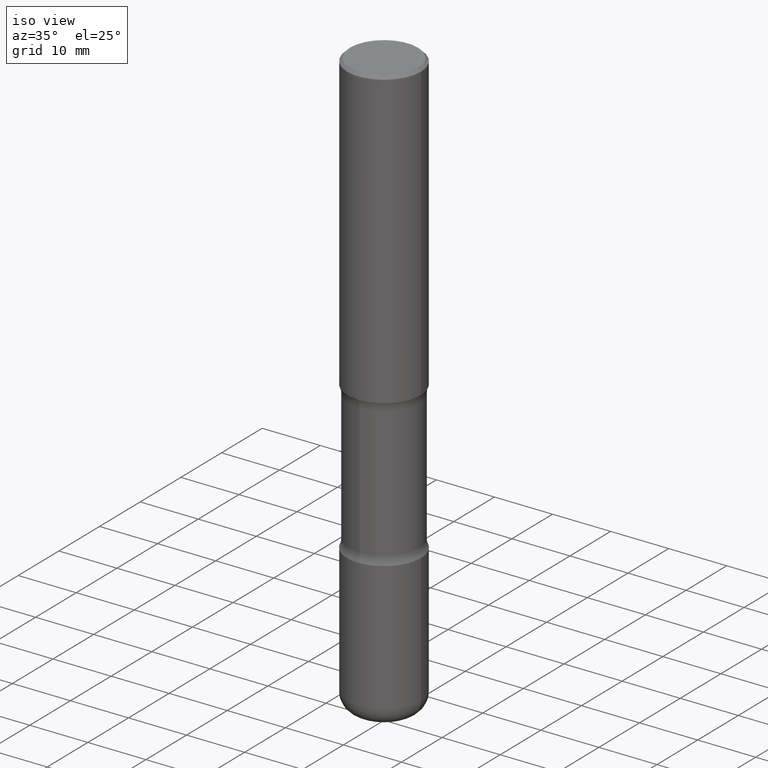
[diagram: clean part render]
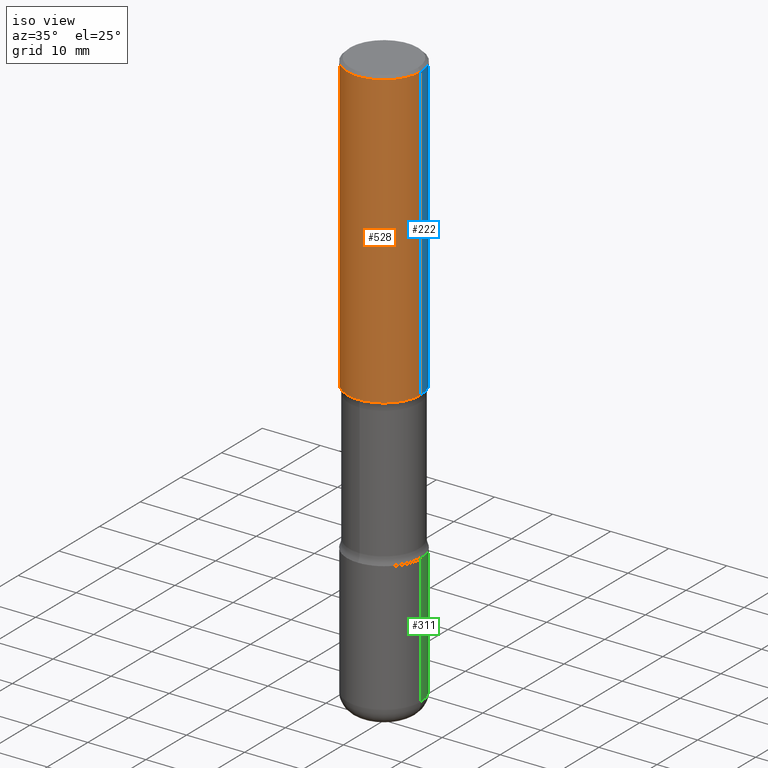
[diagram: same view with three faces highlighted in distinct colors, each labeled with its STEP entity id]
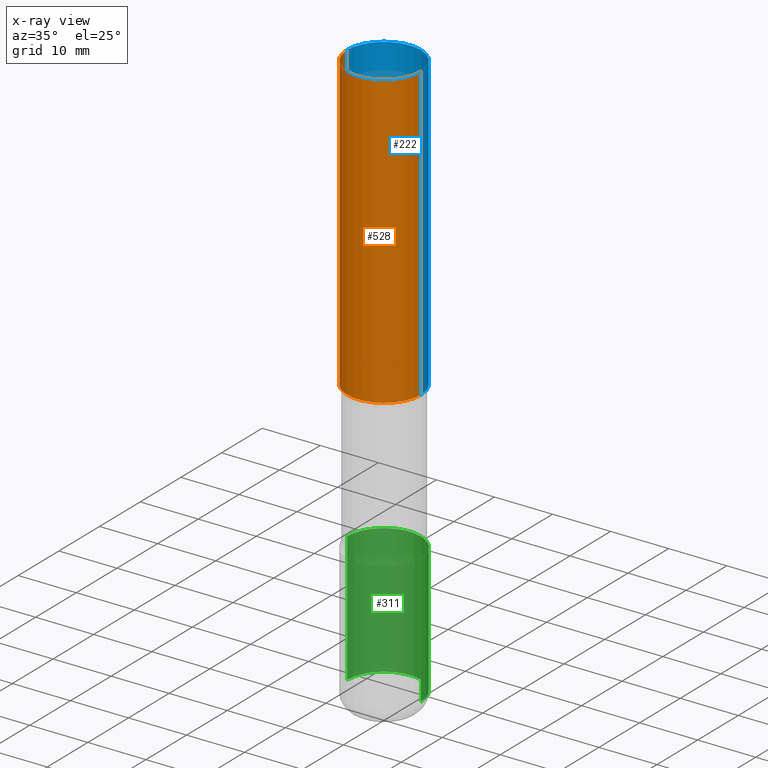
[diagram: x-ray of the same camera — body ghosted, the three highlighted faces saturated]
A machine part, iso view with three faces highlighted in distinct colors.
The next image is the same camera in x-ray (body ghosted, the three faces saturated) — at least one of them is partly hidden behind the body in this view.
Their STEP definitions:

[orange] entity #528 — the highlighted cylindrical surface (partial cylindrical patch) has radius 6.35 mm, axis along (-0, 0, 1).
#8 = CIRCLE ( 'NONE', #402, 0.2499999999999999167 ) ;
#38 = CIRCLE ( 'NONE', #184, 0.2500000000000001665 ) ;
#61 = ORIENTED_EDGE ( 'NONE', *, *, #473, .F. ) ;
#64 = AXIS2_PLACEMENT_3D ( 'NONE', #219, #392, #175 ) ;
#66 = VERTEX_POINT ( 'NONE', #306 ) ;
#81 = CARTESIAN_POINT ( 'NONE',  ( 0.2500000000000000555, -1.745740669421567269E-15, 1.219044193948984228E-29 ) ) ;
#83 = DIRECTION ( 'NONE',  ( -2.445468806185136597E-29, 3.491481338843145583E-15, 1.000000000000000000 ) ) ;
#87 = DIRECTION ( 'NONE',  ( 1.000000000000000000, -6.982962677686265922E-15, 0.000000000000000000 ) ) ;
#92 = DIRECTION ( 'NONE',  ( -2.445468806185136877E-29, 3.491481338843145188E-15, 1.000000000000000000 ) ) ;
#118 = CARTESIAN_POINT ( 'NONE',  ( -0.2500000000000000555, 1.776356839400250859E-15, -1.229733772563726866E-29 ) ) ;
#129 = DIRECTION ( 'NONE',  ( -2.445468806185136597E-29, 3.491481338843145583E-15, 1.000000000000000000 ) ) ;
#131 = FACE_OUTER_BOUND ( 'NONE', #426, .T. ) ;
#166 = VECTOR ( 'NONE', #92, 39.37007874015748143 ) ;
#175 = DIRECTION ( 'NONE',  ( 1.000000000000000000, -6.982962677686267499E-15, 4.876176775795935793E-29 ) ) ;
#184 = AXIS2_PLACEMENT_3D ( 'NONE', #557, #129, #87 ) ;
#199 = VERTEX_POINT ( 'NONE', #406 ) ;
#211 = LINE ( 'NONE', #81, #166 ) ;
#219 = CARTESIAN_POINT ( 'NONE',  ( 0.000000000000000000, 0.000000000000000000, 0.000000000000000000 ) ) ;
#298 = CARTESIAN_POINT ( 'NONE',  ( -0.2500000000000001665, -1.750039312831323809E-15, -2.000000000000000000 ) ) ;
#306 = CARTESIAN_POINT ( 'NONE',  ( 0.2499999999999999167, -1.784954126219745400E-15, -0.02000000000000006981 ) ) ;
#312 = ORIENTED_EDGE ( 'NONE', *, *, #443, .T. ) ;
#319 = ORIENTED_EDGE ( 'NONE', *, *, #381, .F. ) ;
#326 = VERTEX_POINT ( 'NONE', #417 ) ;
#330 = ORIENTED_EDGE ( 'NONE', *, *, #448, .T. ) ;
#339 = CARTESIAN_POINT ( 'NONE',  ( 4.890937612370289799E-31, -6.982962677686315028E-17, -0.02000000000000006981 ) ) ;
#380 = LINE ( 'NONE', #118, #456 ) ;
#381 = EDGE_CURVE ( 'NONE', #418, #326, #380, .T. ) ;
#392 = DIRECTION ( 'NONE',  ( -2.445468806185136597E-29, 3.491481338843145583E-15, 1.000000000000000000 ) ) ;
#398 = CYLINDRICAL_SURFACE ( 'NONE', #64, 0.2500000000000000555 ) ;
#402 = AXIS2_PLACEMENT_3D ( 'NONE', #339, #83, #513 ) ;
#406 = CARTESIAN_POINT ( 'NONE',  ( 0.2500000000000001665, -8.728703347107858632E-15, -2.000000000000000000 ) ) ;
#417 = CARTESIAN_POINT ( 'NONE',  ( -0.2499999999999999167, 1.675911042644703182E-15, -0.02000000000000006981 ) ) ;
#418 = VERTEX_POINT ( 'NONE', #298 ) ;
#426 = EDGE_LOOP ( 'NONE', ( #319, #312, #330, #61 ) ) ;
#443 = EDGE_CURVE ( 'NONE', #418, #199, #38, .T. ) ;
#448 = EDGE_CURVE ( 'NONE', #199, #66, #211, .T. ) ;
#456 = VECTOR ( 'NONE', #465, 39.37007874015748143 ) ;
#465 = DIRECTION ( 'NONE',  ( -2.445468806185136877E-29, 3.491481338843145188E-15, 1.000000000000000000 ) ) ;
#473 = EDGE_CURVE ( 'NONE', #326, #66, #8, .T. ) ;
#513 = DIRECTION ( 'NONE',  ( 1.000000000000000000, -6.982962677686267499E-15, 0.000000000000000000 ) ) ;
#528 = ADVANCED_FACE ( 'NONE', ( #131 ), #398, .T. ) ;
#557 = CARTESIAN_POINT ( 'NONE',  ( 4.890937612370273194E-29, -6.982962677686291165E-15, -2.000000000000000000 ) ) ;

[blue] entity #222 — the highlighted cylindrical surface (partial cylindrical patch) has radius 6.35 mm, axis along (-0, 0, 1).
#66 = VERTEX_POINT ( 'NONE', #306 ) ;
#74 = CARTESIAN_POINT ( 'NONE',  ( 0.000000000000000000, 0.000000000000000000, 0.000000000000000000 ) ) ;
#81 = CARTESIAN_POINT ( 'NONE',  ( 0.2500000000000000555, -1.745740669421567269E-15, 1.219044193948984228E-29 ) ) ;
#89 = DIRECTION ( 'NONE',  ( -2.445468806185136597E-29, 3.491481338843145583E-15, 1.000000000000000000 ) ) ;
#92 = DIRECTION ( 'NONE',  ( -2.445468806185136877E-29, 3.491481338843145188E-15, 1.000000000000000000 ) ) ;
#111 = CYLINDRICAL_SURFACE ( 'NONE', #344, 0.2500000000000000555 ) ;
#118 = CARTESIAN_POINT ( 'NONE',  ( -0.2500000000000000555, 1.776356839400250859E-15, -1.229733772563726866E-29 ) ) ;
#166 = VECTOR ( 'NONE', #92, 39.37007874015748143 ) ;
#195 = ORIENTED_EDGE ( 'NONE', *, *, #448, .F. ) ;
#199 = VERTEX_POINT ( 'NONE', #406 ) ;
#211 = LINE ( 'NONE', #81, #166 ) ;
#213 = CIRCLE ( 'NONE', #447, 0.2499999999999999167 ) ;
#222 = ADVANCED_FACE ( 'NONE', ( #439 ), #111, .T. ) ;
#260 = CIRCLE ( 'NONE', #542, 0.2500000000000001665 ) ;
#280 = ORIENTED_EDGE ( 'NONE', *, *, #329, .T. ) ;
#289 = DIRECTION ( 'NONE',  ( -2.445468806185136597E-29, 3.491481338843145583E-15, 1.000000000000000000 ) ) ;
#297 = ORIENTED_EDGE ( 'NONE', *, *, #415, .F. ) ;
#298 = CARTESIAN_POINT ( 'NONE',  ( -0.2500000000000001665, -1.750039312831323809E-15, -2.000000000000000000 ) ) ;
#306 = CARTESIAN_POINT ( 'NONE',  ( 0.2499999999999999167, -1.784954126219745400E-15, -0.02000000000000006981 ) ) ;
#324 = DIRECTION ( 'NONE',  ( -2.445468806185136597E-29, 3.491481338843145583E-15, 1.000000000000000000 ) ) ;
#326 = VERTEX_POINT ( 'NONE', #417 ) ;
#328 = CARTESIAN_POINT ( 'NONE',  ( 4.890937612370273194E-29, -6.982962677686291165E-15, -2.000000000000000000 ) ) ;
#329 = EDGE_CURVE ( 'NONE', #199, #418, #260, .T. ) ;
#344 = AXIS2_PLACEMENT_3D ( 'NONE', #74, #324, #384 ) ;
#380 = LINE ( 'NONE', #118, #456 ) ;
#381 = EDGE_CURVE ( 'NONE', #418, #326, #380, .T. ) ;
#384 = DIRECTION ( 'NONE',  ( 1.000000000000000000, -6.982962677686267499E-15, 4.876176775795935793E-29 ) ) ;
#406 = CARTESIAN_POINT ( 'NONE',  ( 0.2500000000000001665, -8.728703347107858632E-15, -2.000000000000000000 ) ) ;
#414 = DIRECTION ( 'NONE',  ( 1.000000000000000000, -6.982962677686265922E-15, 0.000000000000000000 ) ) ;
#415 = EDGE_CURVE ( 'NONE', #66, #326, #213, .T. ) ;
#417 = CARTESIAN_POINT ( 'NONE',  ( -0.2499999999999999167, 1.675911042644703182E-15, -0.02000000000000006981 ) ) ;
#418 = VERTEX_POINT ( 'NONE', #298 ) ;
#439 = FACE_OUTER_BOUND ( 'NONE', #546, .T. ) ;
#447 = AXIS2_PLACEMENT_3D ( 'NONE', #480, #89, #555 ) ;
#448 = EDGE_CURVE ( 'NONE', #199, #66, #211, .T. ) ;
#456 = VECTOR ( 'NONE', #465, 39.37007874015748143 ) ;
#465 = DIRECTION ( 'NONE',  ( -2.445468806185136877E-29, 3.491481338843145188E-15, 1.000000000000000000 ) ) ;
#480 = CARTESIAN_POINT ( 'NONE',  ( 4.890937612370289799E-31, -6.982962677686315028E-17, -0.02000000000000006981 ) ) ;
#514 = ORIENTED_EDGE ( 'NONE', *, *, #381, .T. ) ;
#542 = AXIS2_PLACEMENT_3D ( 'NONE', #328, #289, #414 ) ;
#546 = EDGE_LOOP ( 'NONE', ( #280, #514, #297, #195 ) ) ;
#555 = DIRECTION ( 'NONE',  ( 1.000000000000000000, -6.982962677686267499E-15, 0.000000000000000000 ) ) ;

[green] entity #311 — the highlighted cylindrical surface (partial cylindrical patch) has radius 6.35 mm, axis along (-0, 0, 1).
#1 = CARTESIAN_POINT ( 'NONE',  ( -0.2500000000000003331, -1.177059075531115523E-14, -3.880000000000000782 ) ) ;
#2 = CIRCLE ( 'NONE', #268, 0.2500000000000003886 ) ;
#24 = CARTESIAN_POINT ( 'NONE',  ( 0.2500000000000003331, -1.529268826413297711E-14, -3.880000000000000782 ) ) ;
#30 = CARTESIAN_POINT ( 'NONE',  ( -0.2500000000000003331, 1.776356839400252831E-15, -1.229733772563727987E-29 ) ) ;
#35 = ORIENTED_EDGE ( 'NONE', *, *, #149, .T. ) ;
#36 = DIRECTION ( 'NONE',  ( 1.000000000000000000, -6.982962677686270655E-15, 0.000000000000000000 ) ) ;
#51 = DIRECTION ( 'NONE',  ( -2.445468806185136877E-29, 3.491481338843145188E-15, 1.000000000000000000 ) ) ;
#65 = DIRECTION ( 'NONE',  ( 1.000000000000000000, -6.982962677686266711E-15, 4.876176775795935793E-29 ) ) ;
#91 = EDGE_CURVE ( 'NONE', #359, #207, #270, .T. ) ;
#113 = ORIENTED_EDGE ( 'NONE', *, *, #91, .F. ) ;
#122 = CYLINDRICAL_SURFACE ( 'NONE', #396, 0.2500000000000003331 ) ;
#149 = EDGE_CURVE ( 'NONE', #359, #209, #2, .T. ) ;
#178 = AXIS2_PLACEMENT_3D ( 'NONE', #182, #522, #36 ) ;
#182 = CARTESIAN_POINT ( 'NONE',  ( 7.336406418555409790E-29, -1.047444401652943635E-14, -3.000000000000000444 ) ) ;
#203 = LINE ( 'NONE', #30, #467 ) ;
#207 = VERTEX_POINT ( 'NONE', #220 ) ;
#209 = VERTEX_POINT ( 'NONE', #1 ) ;
#214 = ORIENTED_EDGE ( 'NONE', *, *, #524, .F. ) ;
#220 = CARTESIAN_POINT ( 'NONE',  ( 0.2500000000000002776, -1.222018468595100619E-14, -3.000000000000000444 ) ) ;
#267 = CARTESIAN_POINT ( 'NONE',  ( -0.2500000000000002776, -1.023433896622016898E-14, -3.000000000000000444 ) ) ;
#268 = AXIS2_PLACEMENT_3D ( 'NONE', #526, #454, #451 ) ;
#270 = LINE ( 'NONE', #535, #282 ) ;
#282 = VECTOR ( 'NONE', #51, 39.37007874015748143 ) ;
#293 = CARTESIAN_POINT ( 'NONE',  ( 0.000000000000000000, 0.000000000000000000, 0.000000000000000000 ) ) ;
#311 = ADVANCED_FACE ( 'NONE', ( #428 ), #122, .T. ) ;
#359 = VERTEX_POINT ( 'NONE', #24 ) ;
#370 = EDGE_LOOP ( 'NONE', ( #35, #509, #214, #113 ) ) ;
#377 = EDGE_CURVE ( 'NONE', #209, #493, #203, .T. ) ;
#396 = AXIS2_PLACEMENT_3D ( 'NONE', #293, #425, #65 ) ;
#425 = DIRECTION ( 'NONE',  ( -2.445468806185136597E-29, 3.491481338843145583E-15, 1.000000000000000000 ) ) ;
#428 = FACE_OUTER_BOUND ( 'NONE', #370, .T. ) ;
#451 = DIRECTION ( 'NONE',  ( 1.000000000000000000, -6.982962677686267499E-15, 0.000000000000000000 ) ) ;
#454 = DIRECTION ( 'NONE',  ( -2.445468806185136597E-29, 3.491481338843145583E-15, 1.000000000000000000 ) ) ;
#467 = VECTOR ( 'NONE', #506, 39.37007874015748143 ) ;
#493 = VERTEX_POINT ( 'NONE', #267 ) ;
#506 = DIRECTION ( 'NONE',  ( -2.445468806185136877E-29, 3.491481338843145188E-15, 1.000000000000000000 ) ) ;
#509 = ORIENTED_EDGE ( 'NONE', *, *, #377, .T. ) ;
#522 = DIRECTION ( 'NONE',  ( -2.445468806185136597E-29, 3.491481338843145583E-15, 1.000000000000000000 ) ) ;
#524 = EDGE_CURVE ( 'NONE', #207, #493, #531, .T. ) ;
#526 = CARTESIAN_POINT ( 'NONE',  ( 9.488418967998331206E-29, -1.354694759471140727E-14, -3.880000000000000782 ) ) ;
#531 = CIRCLE ( 'NONE', #178, 0.2500000000000002776 ) ;
#535 = CARTESIAN_POINT ( 'NONE',  ( 0.2500000000000003331, -1.745740669421569044E-15, 1.219044193948985630E-29 ) ) ;